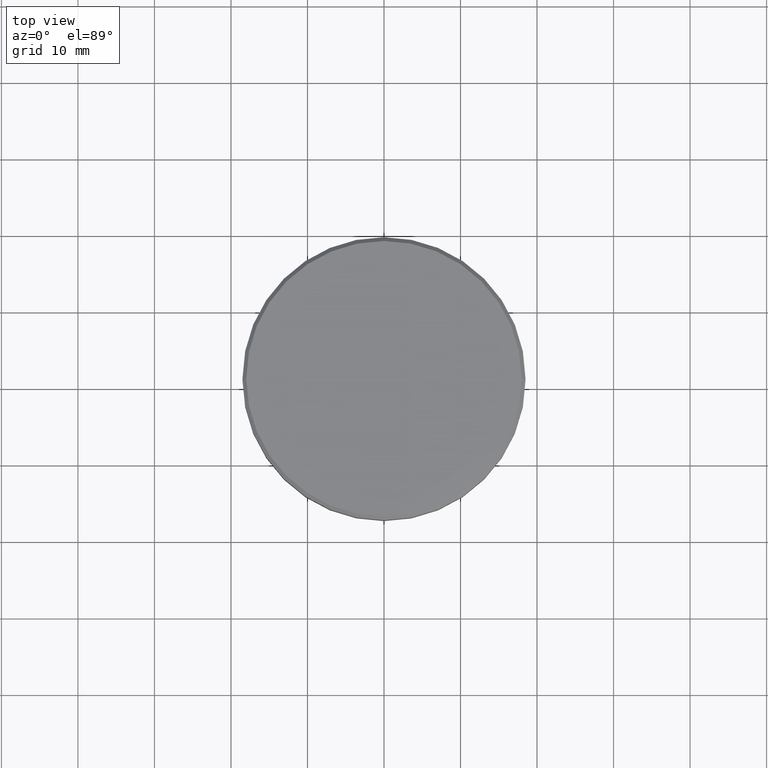
[diagram: clean part render]
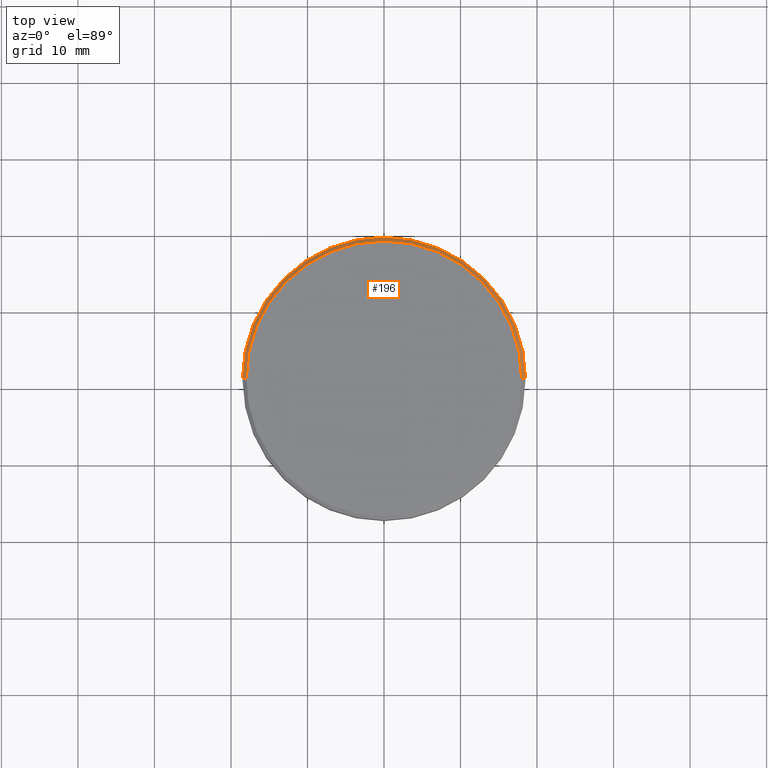
[diagram: same view with one face highlighted and labeled with its STEP entity id]
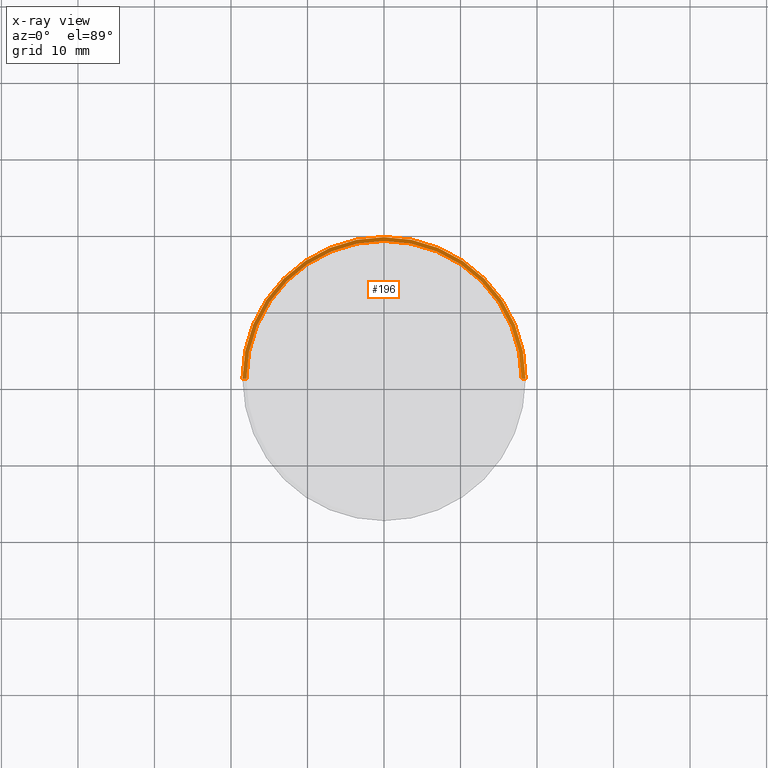
[diagram: x-ray of the same camera — body ghosted, the highlighted face saturated]
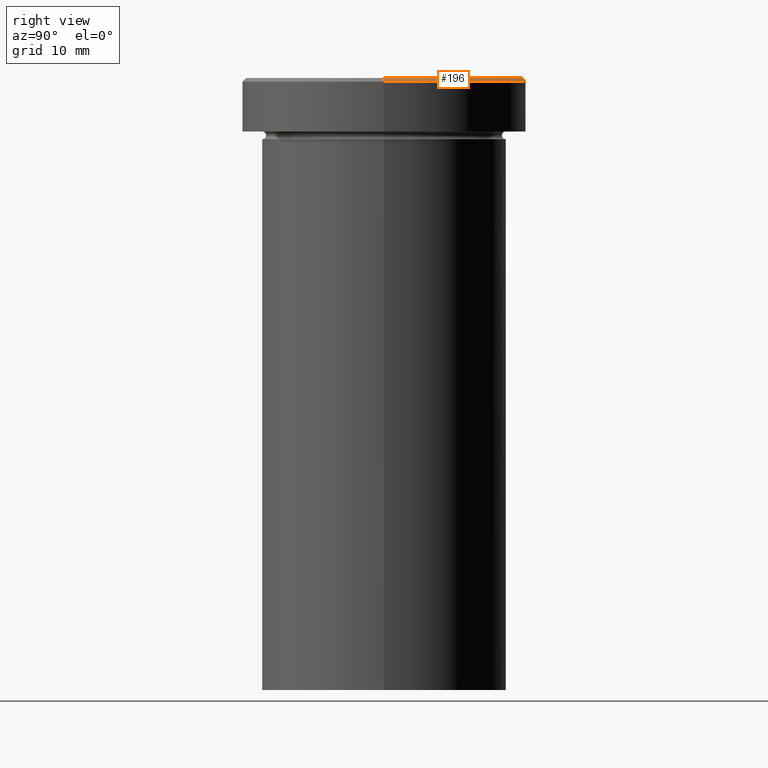
[diagram: same view with one face highlighted and labeled with its STEP entity id]
A machine part, top view. The second image highlights one B-rep face of the part: STEP entity #196.
The next image is the same camera in x-ray: the body ghosted, the highlighted face saturated — about 0% of this face is hidden behind the body in this view.
A second angle (right view) of the same face is appended — the face is thin or edge-on in the first view.
In plain terms, the highlighted conical surface has half-angle 45 deg.
Its self-contained STEP definition (entity closure, byte-faithful):
#9 = CONICAL_SURFACE ( 'NONE', #170, 17.99999999999998934, 0.7853981633974380649 ) ;
#31 = CARTESIAN_POINT ( 'NONE',  ( 0.000000000000000000, 0.000000000000000000, 0.000000000000000000 ) ) ;
#39 = AXIS2_PLACEMENT_3D ( 'NONE', #229, #231, #358 ) ;
#46 = LINE ( 'NONE', #77, #128 ) ;
#47 = CIRCLE ( 'NONE', #39, 17.99999999999998934 ) ;
#64 = CARTESIAN_POINT ( 'NONE',  ( -17.99999999999998934, 0.000000000000000000, 0.000000000000000000 ) ) ;
#77 = CARTESIAN_POINT ( 'NONE',  ( 17.99999999999998934, 2.204364238465234244E-15, 0.000000000000000000 ) ) ;
#80 = ORIENTED_EDGE ( 'NONE', *, *, #316, .F. ) ;
#93 = FACE_OUTER_BOUND ( 'NONE', #145, .T. ) ;
#105 = ORIENTED_EDGE ( 'NONE', *, *, #130, .F. ) ;
#108 = ORIENTED_EDGE ( 'NONE', *, *, #212, .F. ) ;
#109 = DIRECTION ( 'NONE',  ( 0.7071067811865402453, 8.659560562354844111E-17, -0.7071067811865549002 ) ) ;
#127 = DIRECTION ( 'NONE',  ( -0.7071067811865402453, 0.000000000000000000, -0.7071067811865549002 ) ) ;
#128 = VECTOR ( 'NONE', #109, 1000.000000000000114 ) ;
#130 = EDGE_CURVE ( 'NONE', #311, #372, #351, .T. ) ;
#145 = EDGE_LOOP ( 'NONE', ( #108, #266, #80, #105 ) ) ;
#150 = AXIS2_PLACEMENT_3D ( 'NONE', #207, #332, #240 ) ;
#170 = AXIS2_PLACEMENT_3D ( 'NONE', #31, #198, #381 ) ;
#171 = CARTESIAN_POINT ( 'NONE',  ( -17.99999999999998934, 0.000000000000000000, 0.000000000000000000 ) ) ;
#196 = ADVANCED_FACE ( 'NONE', ( #93 ), #9, .T. ) ;
#198 = DIRECTION ( 'NONE',  ( 0.000000000000000000, 0.000000000000000000, -1.000000000000000000 ) ) ;
#207 = CARTESIAN_POINT ( 'NONE',  ( 0.000000000000000000, 0.000000000000000000, -0.5000000000000213163 ) ) ;
#210 = VECTOR ( 'NONE', #127, 1000.000000000000114 ) ;
#212 = EDGE_CURVE ( 'NONE', #370, #311, #47, .T. ) ;
#221 = VERTEX_POINT ( 'NONE', #321 ) ;
#229 = CARTESIAN_POINT ( 'NONE',  ( 0.000000000000000000, 0.000000000000000000, 0.000000000000000000 ) ) ;
#231 = DIRECTION ( 'NONE',  ( -0.000000000000000000, -0.000000000000000000, 1.000000000000000000 ) ) ;
#240 = DIRECTION ( 'NONE',  ( 1.000000000000000000, 0.000000000000000000, 0.000000000000000000 ) ) ;
#247 = CARTESIAN_POINT ( 'NONE',  ( -18.50000000000000000, 2.265596578422603396E-15, -0.5000000000000213163 ) ) ;
#266 = ORIENTED_EDGE ( 'NONE', *, *, #308, .T. ) ;
#308 = EDGE_CURVE ( 'NONE', #370, #221, #46, .T. ) ;
#311 = VERTEX_POINT ( 'NONE', #171 ) ;
#316 = EDGE_CURVE ( 'NONE', #372, #221, #377, .T. ) ;
#321 = CARTESIAN_POINT ( 'NONE',  ( 18.50000000000000000, 0.000000000000000000, -0.5000000000000213163 ) ) ;
#332 = DIRECTION ( 'NONE',  ( 0.000000000000000000, 0.000000000000000000, -1.000000000000000000 ) ) ;
#341 = CARTESIAN_POINT ( 'NONE',  ( 17.99999999999998934, 2.234980408443918820E-15, 0.000000000000000000 ) ) ;
#351 = LINE ( 'NONE', #64, #210 ) ;
#358 = DIRECTION ( 'NONE',  ( 1.000000000000000000, 0.000000000000000000, 0.000000000000000000 ) ) ;
#370 = VERTEX_POINT ( 'NONE', #341 ) ;
#372 = VERTEX_POINT ( 'NONE', #247 ) ;
#377 = CIRCLE ( 'NONE', #150, 18.50000000000000000 ) ;
#381 = DIRECTION ( 'NONE',  ( -1.000000000000000000, 0.000000000000000000, 0.000000000000000000 ) ) ;